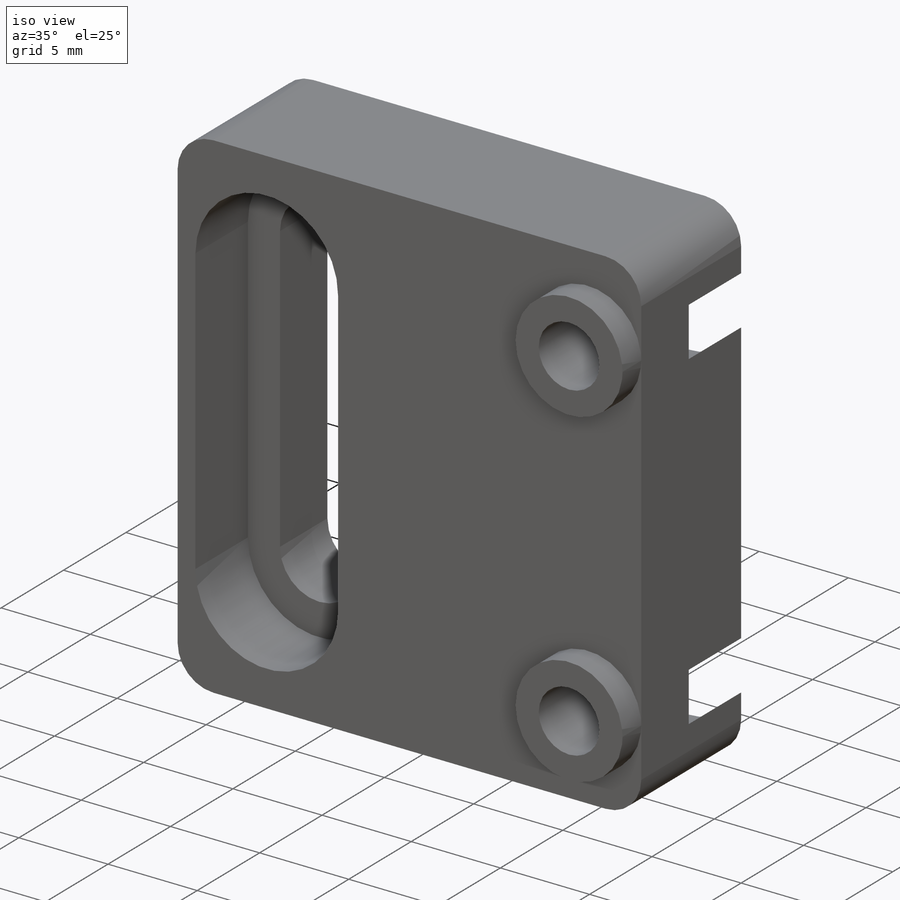
[diagram: iso view]
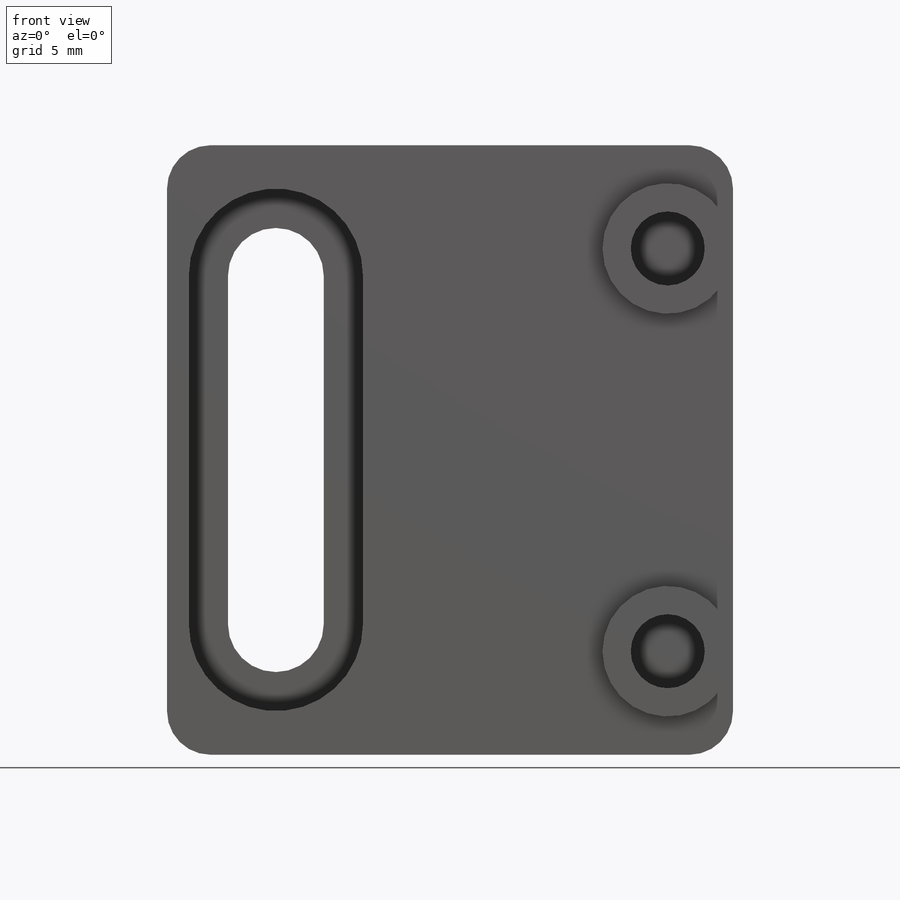
[diagram: front view]
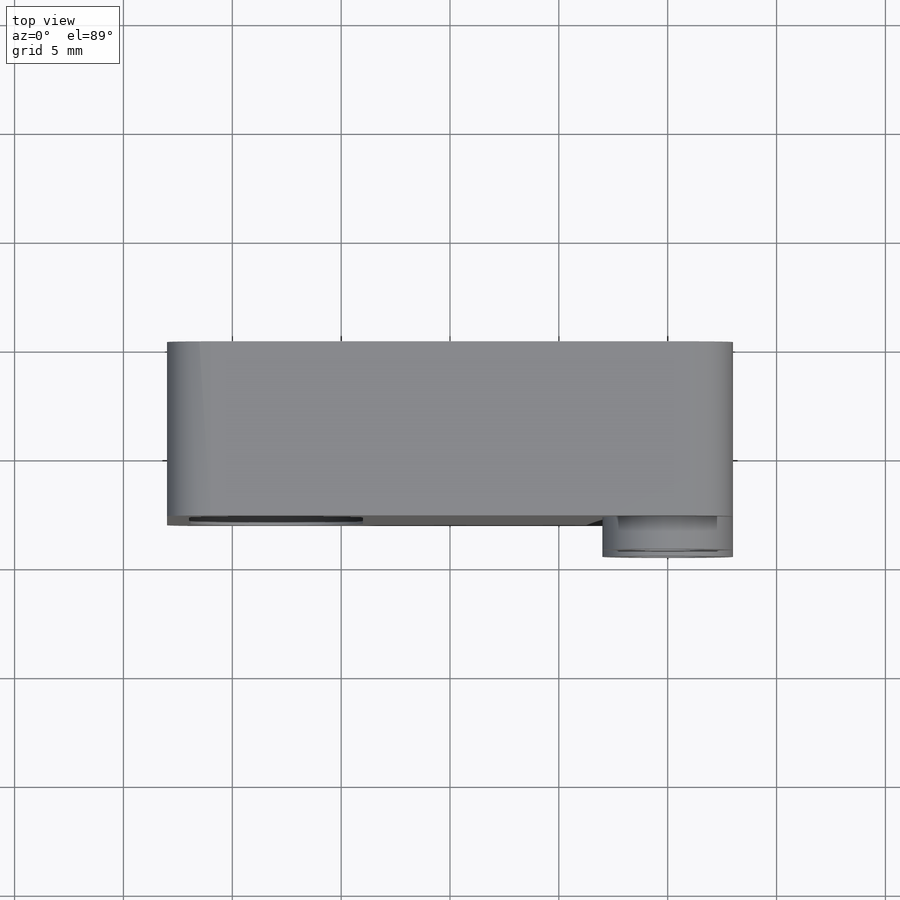
[diagram: top view]
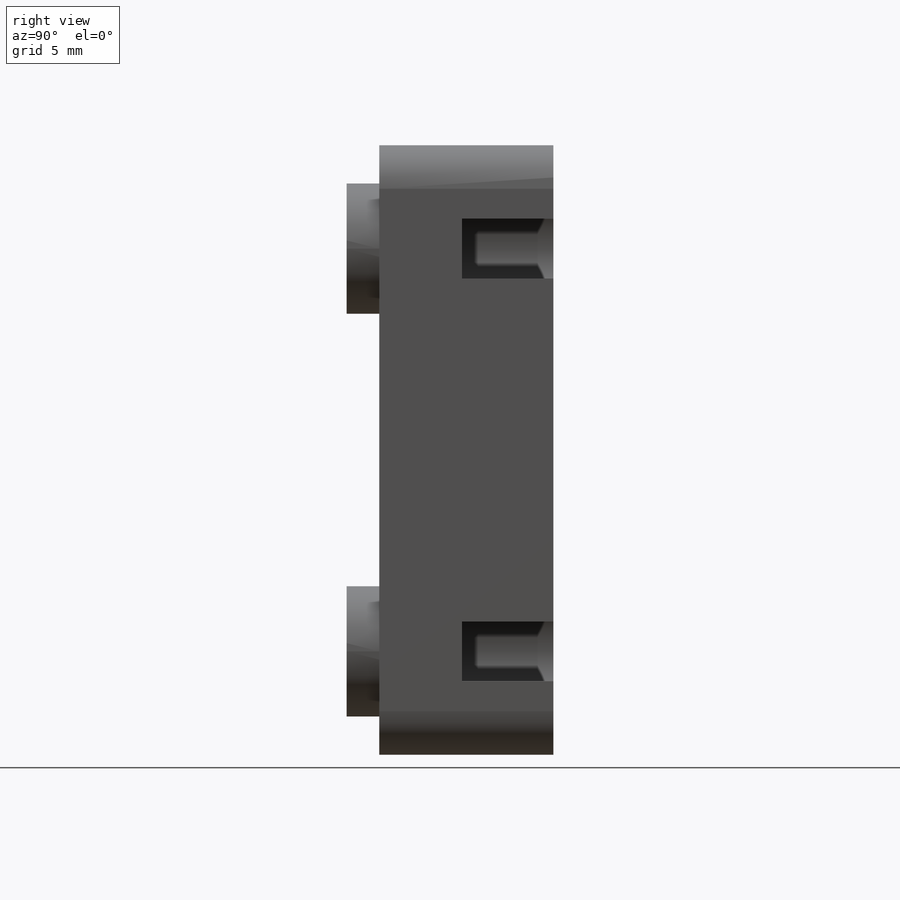
[diagram: right view]
SOLIDWORKS PART (.sldprt)
format: sldprt  version: not decoded by parser v0  size: 252,928 bytes
history: native  units: mm
features: sketch x7, cut_extrude x4, plane x3, extrude x3, material x1, fillet x1 (+8 scaffold rows collapsed)
feature tree (27):
  scaffold x8  (default folders/planes/origin — collapsed)
  material  "Material <not specified>"
  plane  "Plan de face"
  plane  "Plan de dessus"
  plane  "Plan de droite"
  sketch  "Esquisse1"  dims[D1=28.0mm D2=26.0mm D3=14.0mm D4=8.0mm]
  extrude  "Boss.-Extru.1"  Depth=8mm
  sketch  "Esquisse2"  dims[c1.D1=4.4mm c1.D4=2.2mm c1.D2=5.0mm c1.D3=14.0mm c1.D5=16.0mm c1.D6=6.0mm c2.D1=2.8mm]
  cut_extrude  "Enlèv. mat.-Extru.1"  [1 undecoded]
  sketch  "Esquisse3"  dims[c1.D1=8.0mm c1.D2=4.0mm c1.D3=6.0mm c1.D4=6.0mm c2.D1=1.0mm]
  cut_extrude  "Enlèv. mat.-Extru.2"  Depth=4.2mm
  sketch  "Esquisse4"  dims[D2=3.4mm D3=3.4mm D1=18.5mm D4=3.0mm D5=3.0mm D6=9.25mm]
  cut_extrude  "Enlèv. mat.-Extru.3"  [1 undecoded]
  sketch  "Esquisse5"  dims[D1=6.6mm D2=6.6mm]
  cut_extrude  "Enlèv. mat.-Extru.6"  Depth=4.2mm
  sketch  "Esquisse6"
  extrude  "Boss.-Extru.2"  Depth=1mm
  sketch  "Esquisse7"
  extrude  "Boss.-Extru.3"  Depth=1.5mm
  fillet  "Fillet1"  Radius=2mm
decode coverage: 11 of 15 modeling features carry decoded parameters
note: 2 parameter values undecoded
note: suppression state not decoded; provenance and decode notes live in map.json
